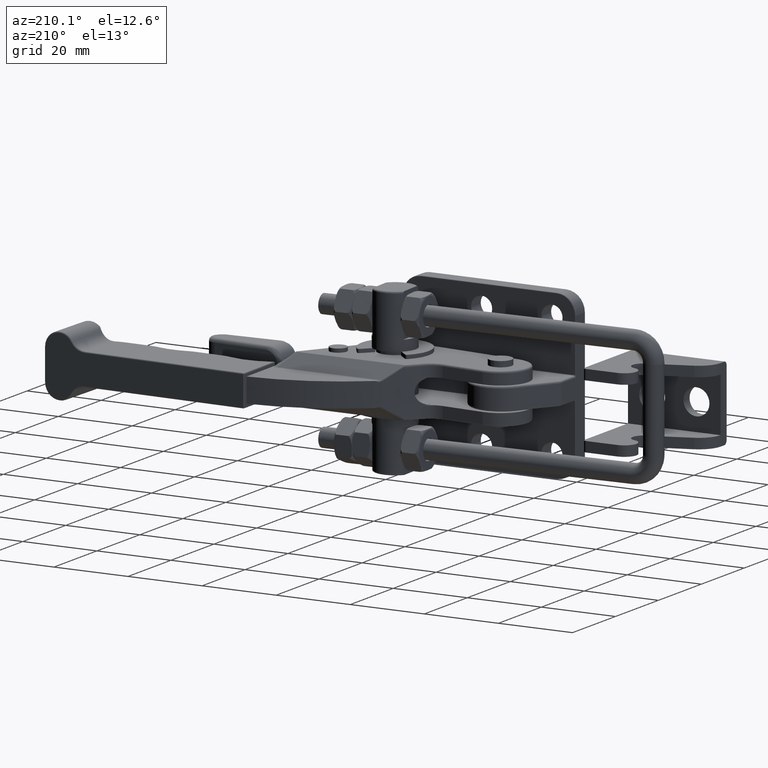
[diagram: clean part render]
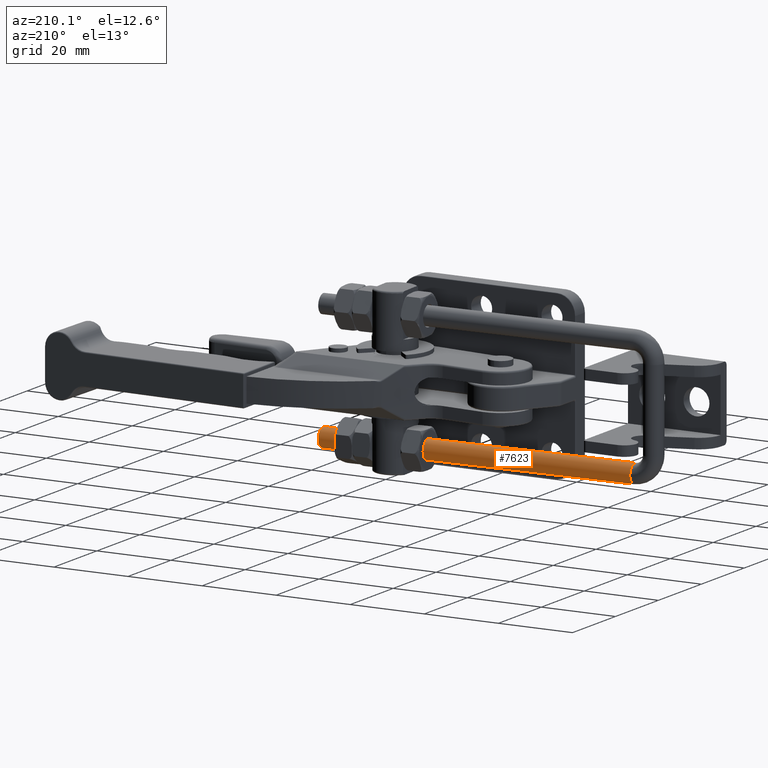
[diagram: same view with one face highlighted and labeled with its STEP entity id]
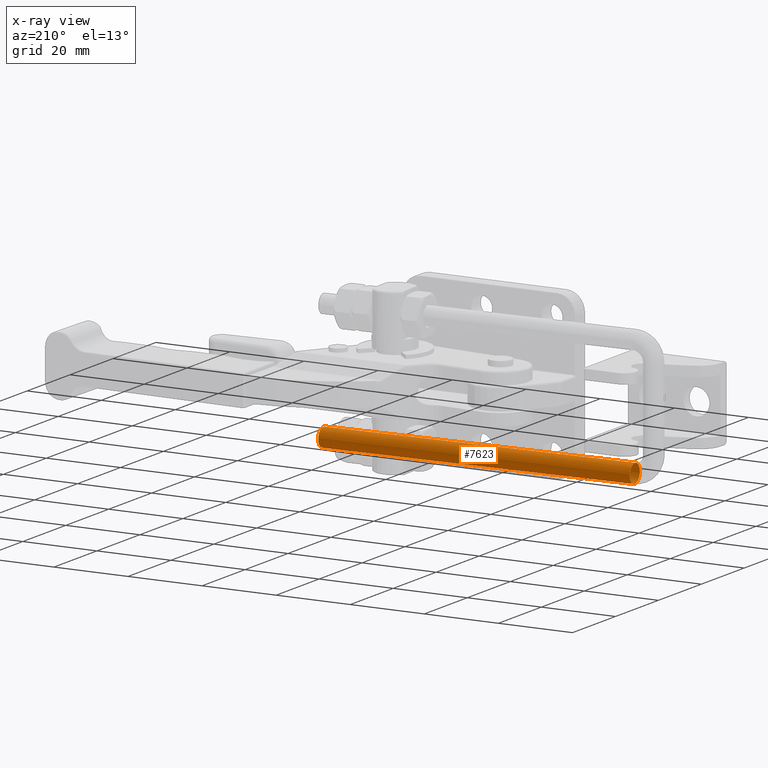
[diagram: x-ray of the same camera — body ghosted, the highlighted face saturated]
A machine part, auxiliary view. The second image highlights one B-rep face of the part: STEP entity #7623.
The next image is the same camera in x-ray: the body ghosted, the highlighted face saturated — about 0% of this face is hidden behind the body in this view.
In plain terms, the highlighted cylindrical surface (bore or boss wall) has radius 2.5 mm, axis along (-0.9994, -0.0349, -0).
Its self-contained STEP definition (entity closure, byte-faithful):
#412=FACE_BOUND('',#2674,.T.);
#1687=CYLINDRICAL_SURFACE('',#8540,2.5);
#2137=FACE_OUTER_BOUND('',#2673,.T.);
#2673=EDGE_LOOP('',(#6927));
#2674=EDGE_LOOP('',(#6928));
#3183=CIRCLE('',#8539,2.5);
#3184=CIRCLE('',#8541,2.5);
#3815=VERTEX_POINT('',#20468);
#3816=VERTEX_POINT('',#20471);
#4865=EDGE_CURVE('',#3815,#3815,#3183,.T.);
#4866=EDGE_CURVE('',#3816,#3816,#3184,.T.);
#6927=ORIENTED_EDGE('',*,*,#4865,.F.);
#6928=ORIENTED_EDGE('',*,*,#4866,.T.);
#7623=ADVANCED_FACE('',(#2137,#412),#1687,.T.);
#8539=AXIS2_PLACEMENT_3D('',#20469,#10731,#10732);
#8540=AXIS2_PLACEMENT_3D('',#20470,#10733,#10734);
#8541=AXIS2_PLACEMENT_3D('',#20472,#10735,#10736);
#10731=DIRECTION('center_axis',(-1.,5.38289951333409E-17,0.));
#10732=DIRECTION('ref_axis',(-5.38289951333409E-17,-1.,0.));
#10733=DIRECTION('center_axis',(-1.,5.38289951333409E-17,0.));
#10734=DIRECTION('ref_axis',(-5.38289951333409E-17,-1.,0.));
#10735=DIRECTION('center_axis',(-1.,5.38289951333409E-17,0.));
#10736=DIRECTION('ref_axis',(-5.38289951333409E-17,-1.,0.));
#20468=CARTESIAN_POINT('',(-38.75,18.5,3.06161699786838E-16));
#20469=CARTESIAN_POINT('Origin',(-38.75,16.,0.));
#20470=CARTESIAN_POINT('Origin',(43.75,16.,0.));
#20471=CARTESIAN_POINT('',(43.75,18.5,3.06161699786838E-16));
#20472=CARTESIAN_POINT('Origin',(43.75,16.,0.));